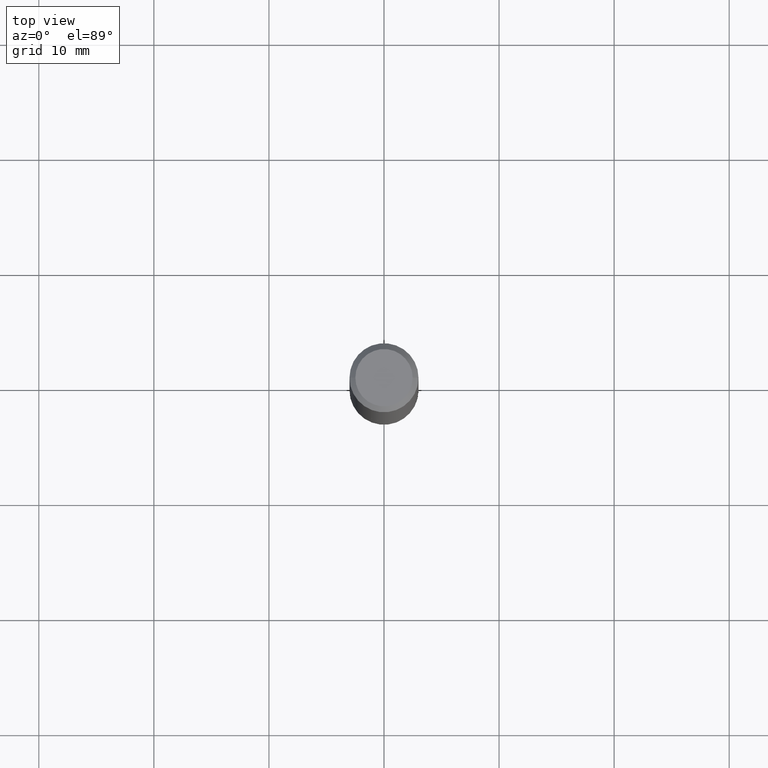
[diagram: clean part render]
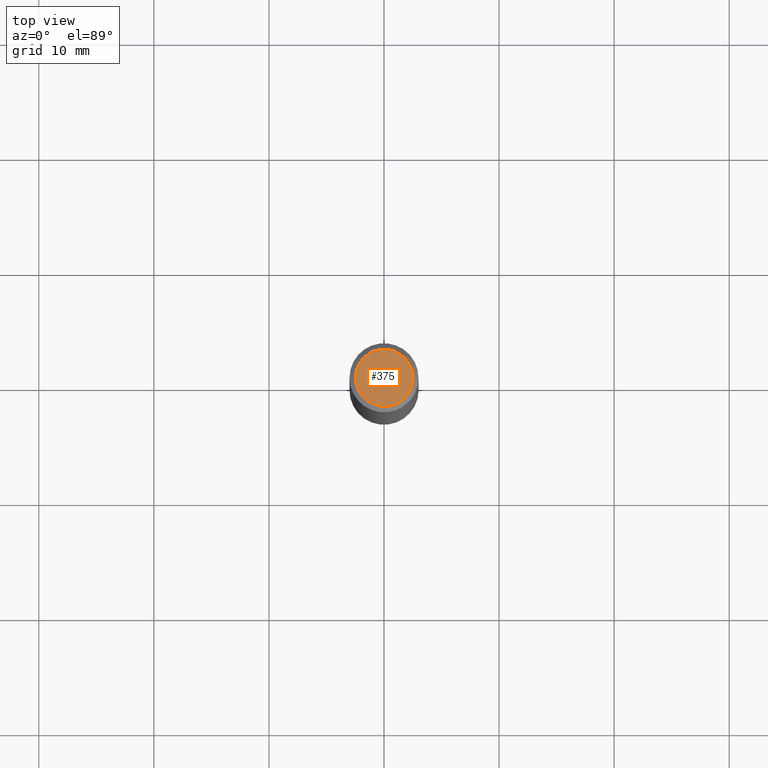
[diagram: same view with one face highlighted and labeled with its STEP entity id]
A machine part, top view. The second image highlights one B-rep face of the part: STEP entity #375.
In plain terms, the highlighted planar face has unit normal (0, -0, -1).
Its self-contained STEP definition (entity closure, byte-faithful):
#7 = CIRCLE ( 'NONE', #304, 0.09809999999999986786 ) ;
#41 = ORIENTED_EDGE ( 'NONE', *, *, #296, .T. ) ;
#43 = DIRECTION ( 'NONE',  ( -1.000000000000000000, 6.982962677686265922E-15, -4.876176775795935793E-29 ) ) ;
#79 = CARTESIAN_POINT ( 'NONE',  ( 0.09809999999999986786, -7.765346469475334625E-16, 1.792775245842223582E-16 ) ) ;
#83 = FACE_OUTER_BOUND ( 'NONE', #245, .T. ) ;
#90 = ORIENTED_EDGE ( 'NONE', *, *, #264, .T. ) ;
#98 = CARTESIAN_POINT ( 'NONE',  ( -4.384175940207923203E-45, 6.259441315597878405E-31, 1.792775245842172799E-16 ) ) ;
#103 = VERTEX_POINT ( 'NONE', #122 ) ;
#115 = PLANE ( 'NONE',  #144 ) ;
#122 = CARTESIAN_POINT ( 'NONE',  ( -0.09809999999999986786, 7.199434520694538083E-16, 1.792775245842123495E-16 ) ) ;
#144 = AXIS2_PLACEMENT_3D ( 'NONE', #146, #386, #43 ) ;
#146 = CARTESIAN_POINT ( 'NONE',  ( 6.850286386810217648E-16, 0.09809999999999986786, -2.528755570484034997E-16 ) ) ;
#153 = DIRECTION ( 'NONE',  ( 1.000000000000000000, -6.982962677686265922E-15, 4.884890577880254879E-29 ) ) ;
#159 = DIRECTION ( 'NONE',  ( -2.445468806185136597E-29, 3.491481338843145583E-15, 1.000000000000000000 ) ) ;
#219 = AXIS2_PLACEMENT_3D ( 'NONE', #223, #159, #153 ) ;
#223 = CARTESIAN_POINT ( 'NONE',  ( -4.384175940207923203E-45, 6.259441315597878405E-31, 1.792775245842172799E-16 ) ) ;
#245 = EDGE_LOOP ( 'NONE', ( #41, #90 ) ) ;
#264 = EDGE_CURVE ( 'NONE', #400, #103, #270, .T. ) ;
#270 = CIRCLE ( 'NONE', #219, 0.09809999999999986786 ) ;
#293 = DIRECTION ( 'NONE',  ( 1.000000000000000000, -6.982962677686265922E-15, 4.884890577880254879E-29 ) ) ;
#296 = EDGE_CURVE ( 'NONE', #103, #400, #7, .T. ) ;
#304 = AXIS2_PLACEMENT_3D ( 'NONE', #98, #417, #293 ) ;
#375 = ADVANCED_FACE ( 'NONE', ( #83 ), #115, .F. ) ;
#386 = DIRECTION ( 'NONE',  ( 2.438088387897960049E-29, -3.491481338843145188E-15, -1.000000000000000000 ) ) ;
#400 = VERTEX_POINT ( 'NONE', #79 ) ;
#417 = DIRECTION ( 'NONE',  ( -2.445468806185136597E-29, 3.491481338843145583E-15, 1.000000000000000000 ) ) ;